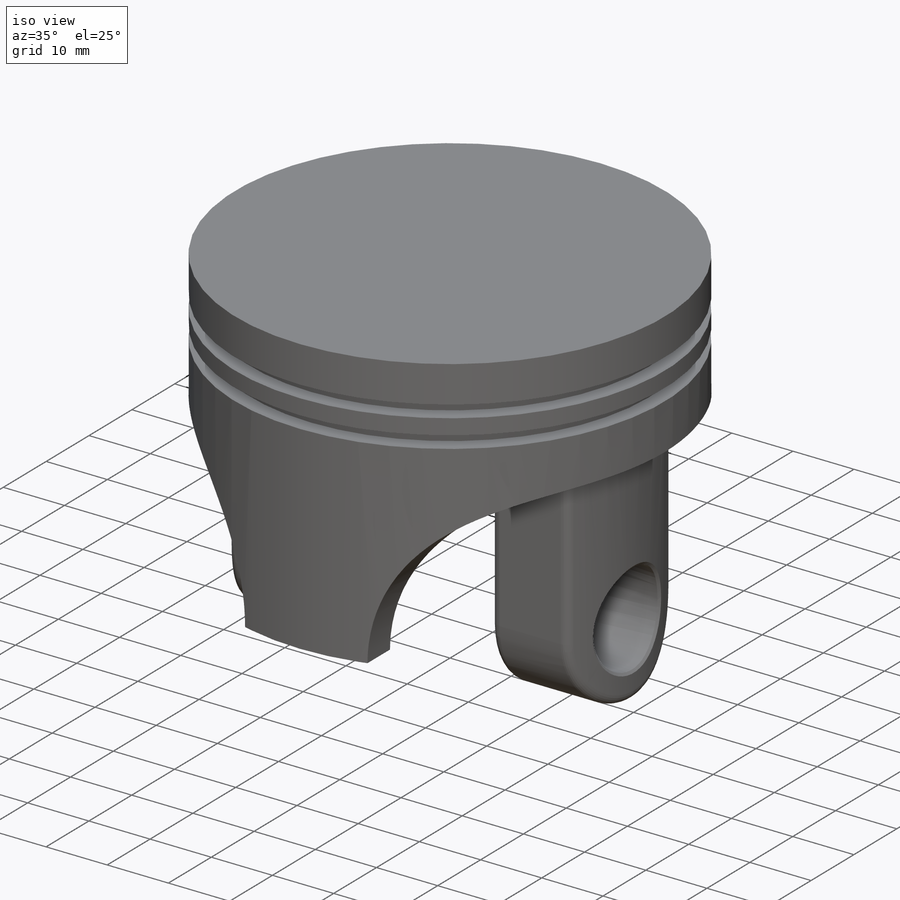
[diagram: iso view]
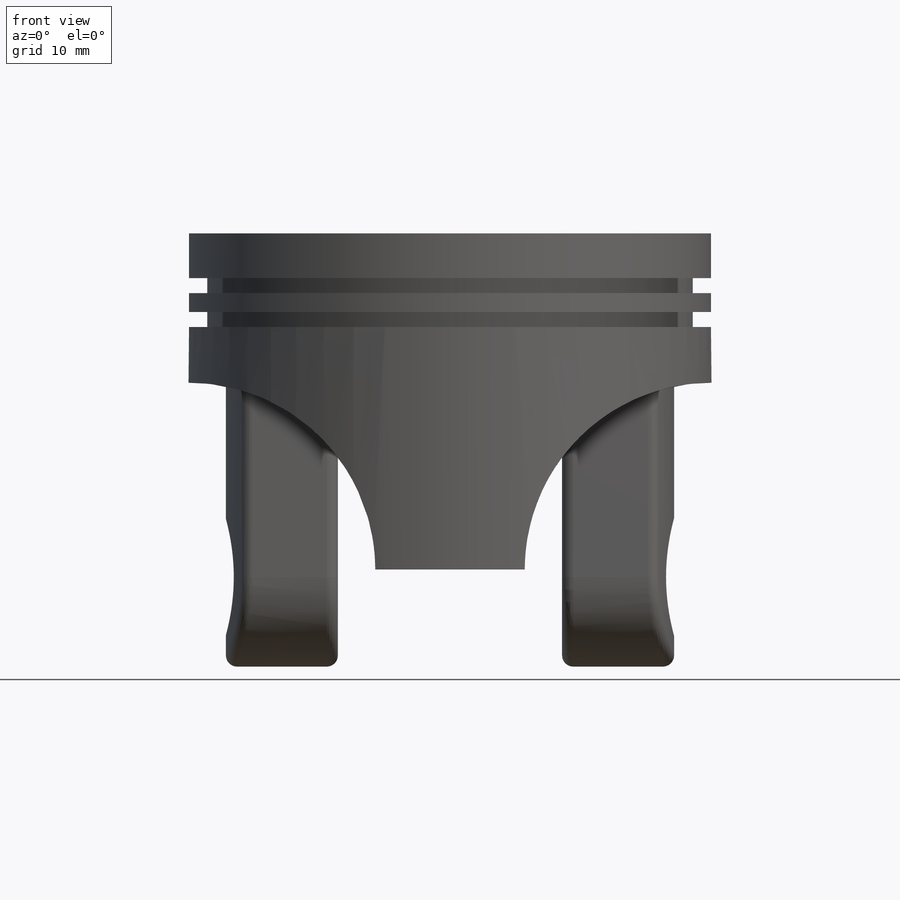
[diagram: front view]
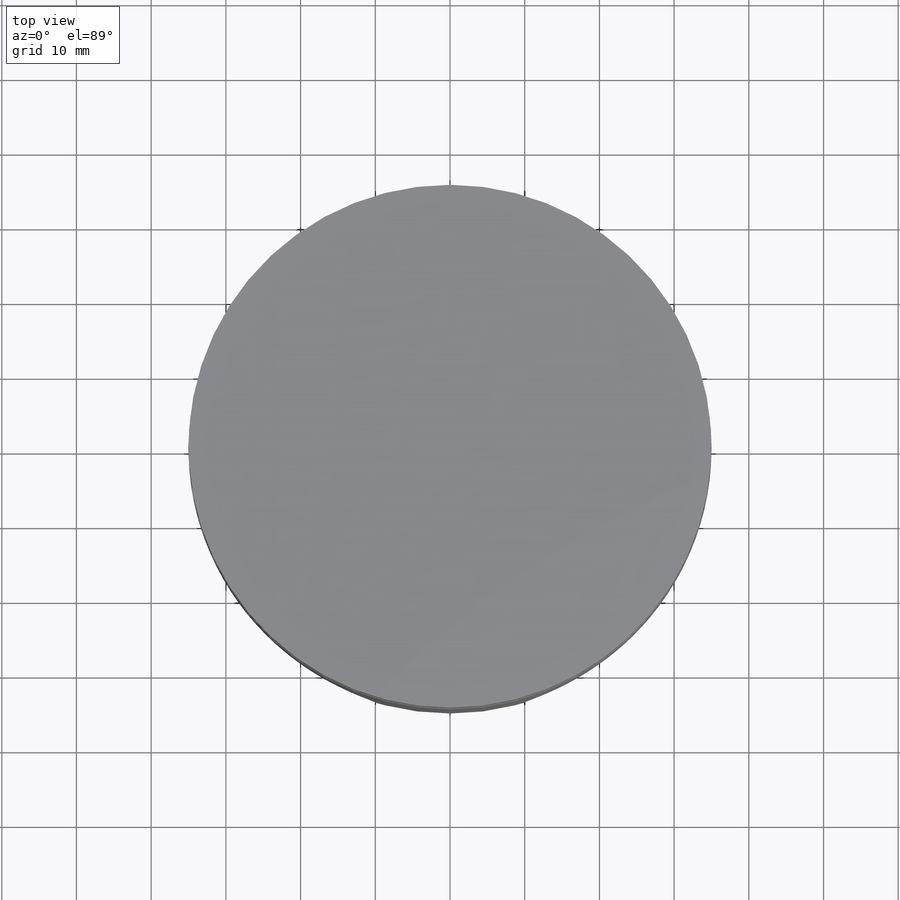
[diagram: top view]
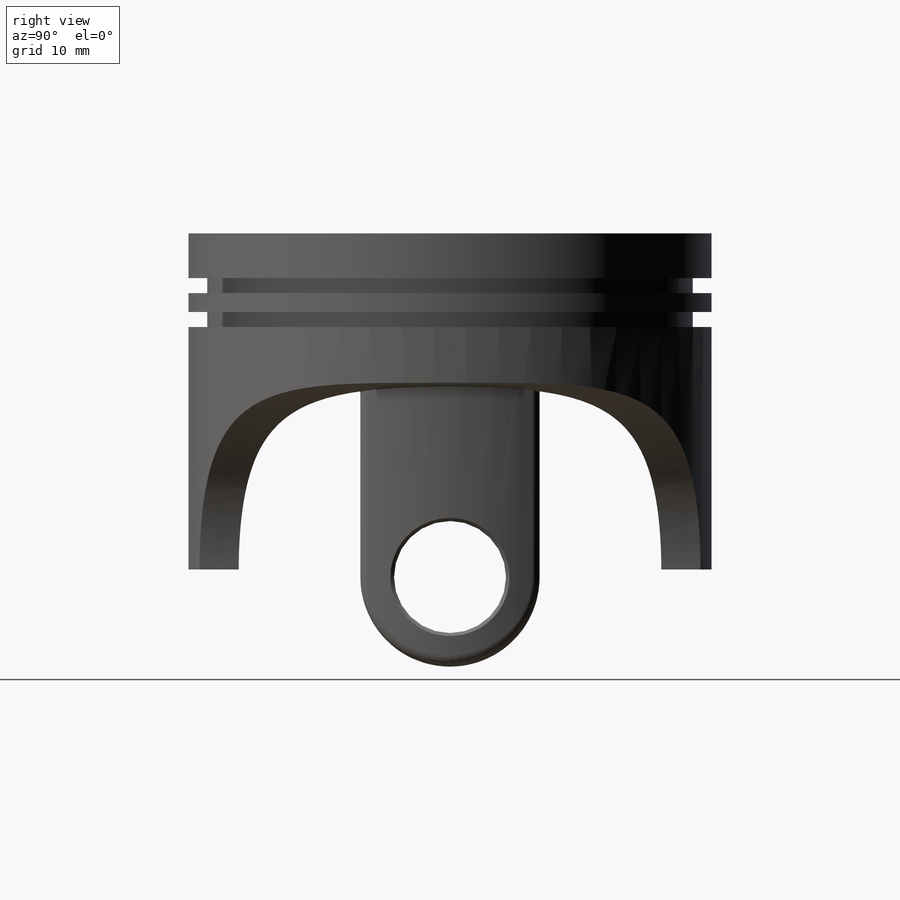
[diagram: right view]
SOLIDWORKS PART (.sldprt)
format: sldprt  version: not decoded by parser v0  size: 700,416 bytes
history: native  units: mm
features: sketch x4, plane x3, cut_extrude x2, fillet x2, material x1, revolve x1, extrude x1, chamfer x1, mirror x1 (+8 scaffold rows collapsed)
feature tree (24):
  scaffold x8  (default folders/planes/origin — collapsed)
  material  "Material <sin especificar>"
  plane  "Alzado"
  plane  "Planta"
  plane  "Vista lateral"
  sketch  "Croquis1"  dims[D1=35.0mm D2=6.0mm D3=2.53mm D4=2.0mm D5=2.5mm D6=5.0mm D7=8.0mm D8=45.0mm]
  revolve  "Revolución1"  Angle=360deg
  sketch  "Croquis2"  dims[D1=50.0mm]
  cut_extrude  "Cortar-Extruir1"  Depth=100mm
  sketch  "Croquis3"  dims[D1=24.0mm D2=15.0mm]
  extrude  "Saliente-Extruir1"  Depth=50mm
  fillet  "Redondeo4"  Radius=12mm
  sketch  "Croquis4"  dims[D1=15.0mm]
  cut_extrude  "Cortar-Extruir2"  [1 undecoded]
  fillet  "Redondeo5"  Radius=1.5mm
  chamfer  "Chaflán1"  Distance=0.5mm Angle=45deg
  mirror  "Simetría1"
decode coverage: 10 of 12 modeling features carry decoded parameters
note: 1 parameter value undecoded
note: suppression state not decoded; provenance and decode notes live in map.json
